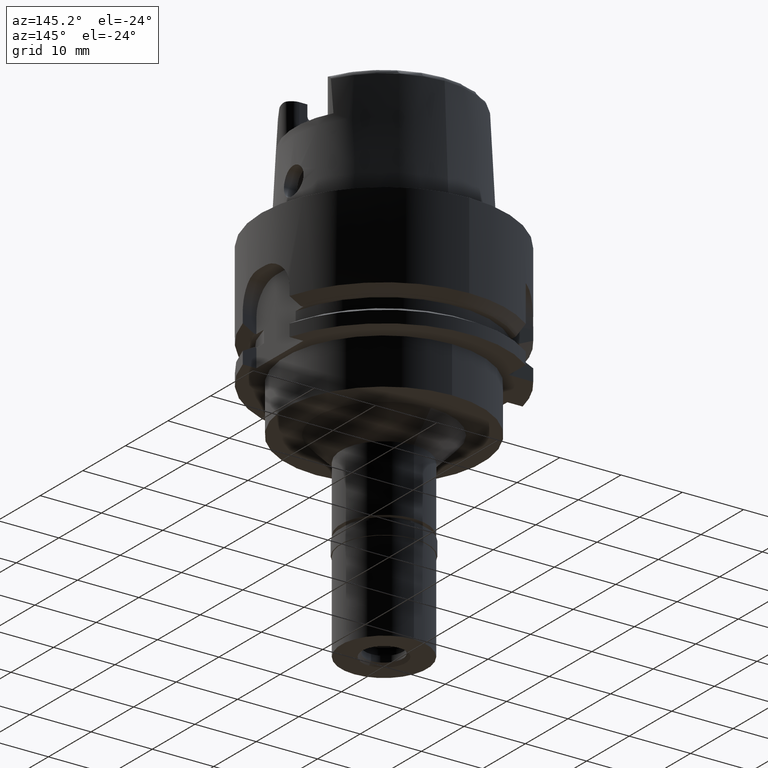
[diagram: clean part render]
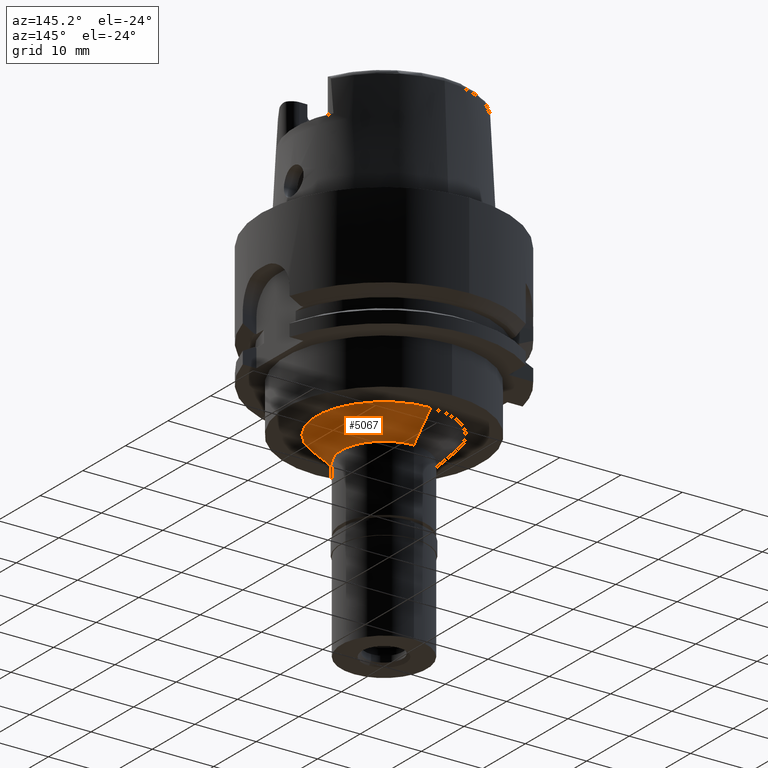
[diagram: same view with one face highlighted and labeled with its STEP entity id]
A machine part, auxiliary view. The second image highlights one B-rep face of the part: STEP entity #5067.
In plain terms, the highlighted conical surface has half-angle 45 deg.
Its self-contained STEP definition (entity closure, byte-faithful):
#189 = EDGE_CURVE ( 'NONE', #2012, #1075, #4746, .T. ) ;
#673 = AXIS2_PLACEMENT_3D ( 'NONE', #896, #813, #2059 ) ;
#706 = CARTESIAN_POINT ( 'NONE',  ( 0.0000000000000000000, 7.000000000000000000, -31.50000000000000000 ) ) ;
#813 = DIRECTION ( 'NONE',  ( 0.0000000000000000000, 0.0000000000000000000, -1.000000000000000000 ) ) ;
#896 = CARTESIAN_POINT ( 'NONE',  ( 0.0000000000000000000, 0.0000000000000000000, -27.50000000000000000 ) ) ;
#923 = ORIENTED_EDGE ( 'NONE', *, *, #1247, .T. ) ;
#1075 = VERTEX_POINT ( 'NONE', #3364 ) ;
#1076 = DIRECTION ( 'NONE',  ( 0.0000000000000000000, 1.000000000000000000, 0.0000000000000000000 ) ) ;
#1098 = AXIS2_PLACEMENT_3D ( 'NONE', #2286, #4911, #4148 ) ;
#1215 = FACE_OUTER_BOUND ( 'NONE', #4572, .T. ) ;
#1247 = EDGE_CURVE ( 'NONE', #1267, #1075, #4425, .T. ) ;
#1267 = VERTEX_POINT ( 'NONE', #2331 ) ;
#1850 = ORIENTED_EDGE ( 'NONE', *, *, #3604, .F. ) ;
#2012 = VERTEX_POINT ( 'NONE', #706 ) ;
#2059 = DIRECTION ( 'NONE',  ( 0.0000000000000000000, 1.000000000000000000, 0.0000000000000000000 ) ) ;
#2204 = CARTESIAN_POINT ( 'NONE',  ( 0.0000000000000000000, 11.00000000000000000, -27.50000000000000000 ) ) ;
#2286 = CARTESIAN_POINT ( 'NONE',  ( 0.0000000000000000000, 0.0000000000000000000, -29.50000000000000000 ) ) ;
#2303 = CARTESIAN_POINT ( 'NONE',  ( 0.0000000000000000000, 11.00000000000000000, -27.50000000000000000 ) ) ;
#2331 = CARTESIAN_POINT ( 'NONE',  ( 0.0000000000000000000, -11.00000000000000000, -27.50000000000000000 ) ) ;
#3364 = CARTESIAN_POINT ( 'NONE',  ( 0.0000000000000000000, -7.000000000000000000, -31.50000000000000000 ) ) ;
#3604 = EDGE_CURVE ( 'NONE', #4470, #2012, #3974, .T. ) ;
#3974 = LINE ( 'NONE', #2303, #4289 ) ;
#4148 = DIRECTION ( 'NONE',  ( 0.0000000000000000000, 1.000000000000000000, 0.0000000000000000000 ) ) ;
#4289 = VECTOR ( 'NONE', #4369, 1000.000000000000114 ) ;
#4369 = DIRECTION ( 'NONE',  ( 0.0000000000000000000, -0.7071067811865474617, -0.7071067811865474617 ) ) ;
#4425 = LINE ( 'NONE', #5266, #5091 ) ;
#4470 = VERTEX_POINT ( 'NONE', #2204 ) ;
#4572 = EDGE_LOOP ( 'NONE', ( #4719, #923, #5271, #1850 ) ) ;
#4719 = ORIENTED_EDGE ( 'NONE', *, *, #4898, .T. ) ;
#4746 = CIRCLE ( 'NONE', #5337, 7.000000000000000000 ) ;
#4882 = CARTESIAN_POINT ( 'NONE',  ( 0.0000000000000000000, 0.0000000000000000000, -31.50000000000000000 ) ) ;
#4898 = EDGE_CURVE ( 'NONE', #4470, #1267, #5206, .T. ) ;
#4911 = DIRECTION ( 'NONE',  ( 0.0000000000000000000, 0.0000000000000000000, 1.000000000000000000 ) ) ;
#5067 = ADVANCED_FACE ( 'NONE', ( #1215 ), #5286, .T. ) ;
#5091 = VECTOR ( 'NONE', #5241, 1000.000000000000114 ) ;
#5206 = CIRCLE ( 'NONE', #673, 11.00000000000000000 ) ;
#5241 = DIRECTION ( 'NONE',  ( 0.0000000000000000000, 0.7071067811865474617, -0.7071067811865474617 ) ) ;
#5266 = CARTESIAN_POINT ( 'NONE',  ( 0.0000000000000000000, -11.00000000000000000, -27.50000000000000000 ) ) ;
#5271 = ORIENTED_EDGE ( 'NONE', *, *, #189, .F. ) ;
#5286 = CONICAL_SURFACE ( 'NONE', #1098, 9.000000000000000000, 0.7853981633972997312 ) ;
#5308 = DIRECTION ( 'NONE',  ( 0.0000000000000000000, 0.0000000000000000000, -1.000000000000000000 ) ) ;
#5337 = AXIS2_PLACEMENT_3D ( 'NONE', #4882, #5308, #1076 ) ;